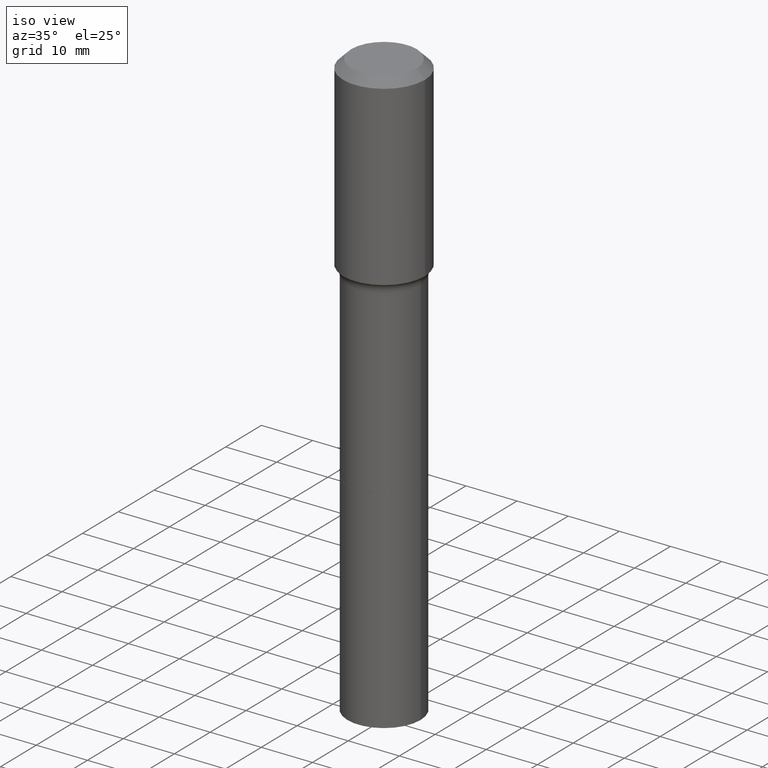
[diagram: clean part render]
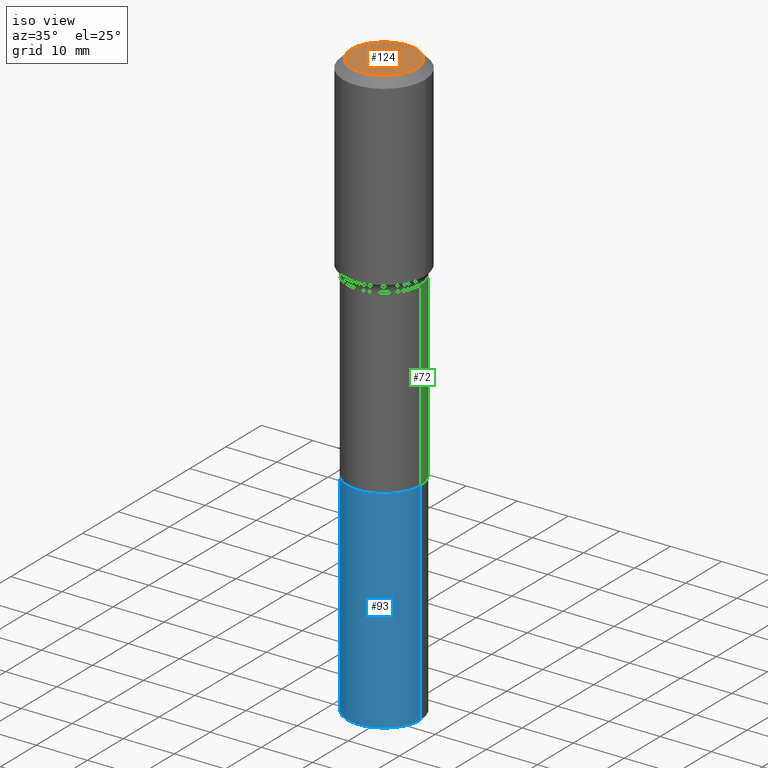
[diagram: same view with three faces highlighted in distinct colors, each labeled with its STEP entity id]
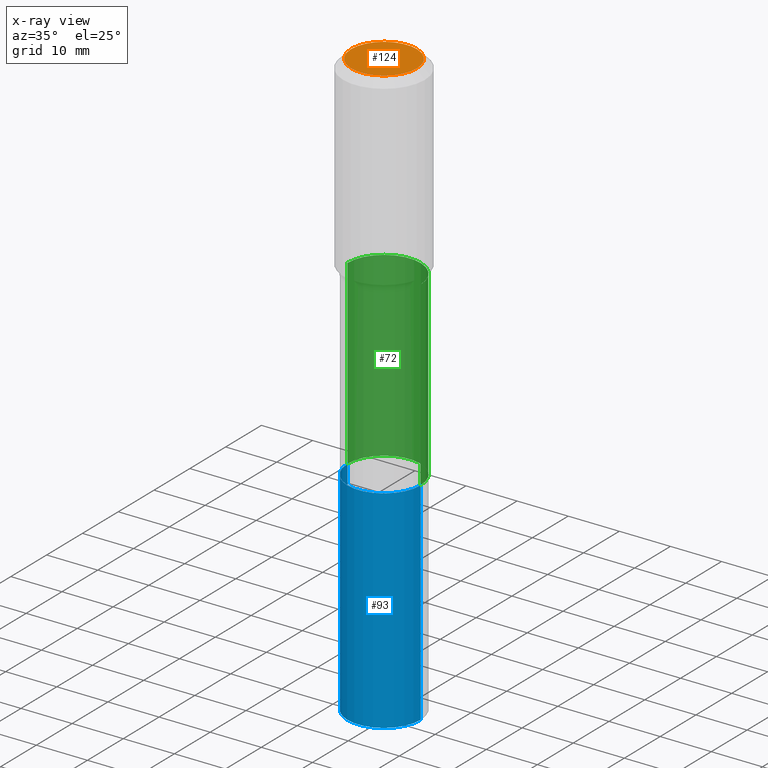
[diagram: x-ray of the same camera — body ghosted, the three highlighted faces saturated]
A machine part, iso view with three faces highlighted in distinct colors.
The next image is the same camera in x-ray (body ghosted, the three faces saturated) — at least one of them is partly hidden behind the body in this view.
Their STEP definitions:

[orange] entity #124 — the highlighted planar face has unit normal (0, -0, -1).
#10 = PLANE ( 'NONE',  #293 ) ;
#18 = DIRECTION ( 'NONE',  ( -1.000000000000000000, 6.982962677686265922E-15, -4.876176775795935793E-29 ) ) ;
#59 = DIRECTION ( 'NONE',  ( 1.000000000000000000, -6.982962677686266711E-15, 4.876115136096691995E-29 ) ) ;
#94 = CARTESIAN_POINT ( 'NONE',  ( -9.427742298522569579E-47, 1.346031739168368629E-32, 3.855188123715871501E-18 ) ) ;
#109 = EDGE_LOOP ( 'NONE', ( #151, #153 ) ) ;
#119 = EDGE_CURVE ( 'NONE', #347, #120, #303, .T. ) ;
#120 = VERTEX_POINT ( 'NONE', #490 ) ;
#124 = ADVANCED_FACE ( 'NONE', ( #255 ), #10, .F. ) ;
#132 = DIRECTION ( 'NONE',  ( 2.438088387897960049E-29, -3.491481338843145188E-15, -1.000000000000000000 ) ) ;
#151 = ORIENTED_EDGE ( 'NONE', *, *, #194, .T. ) ;
#153 = ORIENTED_EDGE ( 'NONE', *, *, #119, .T. ) ;
#194 = EDGE_CURVE ( 'NONE', #120, #347, #313, .T. ) ;
#249 = DIRECTION ( 'NONE',  ( 1.000000000000000000, -6.982962677686266711E-15, 4.876115136096691995E-29 ) ) ;
#255 = FACE_OUTER_BOUND ( 'NONE', #109, .T. ) ;
#291 = CARTESIAN_POINT ( 'NONE',  ( 0.2519600000000000173, -2.054606664725195453E-15, 3.855188123729206640E-18 ) ) ;
#293 = AXIS2_PLACEMENT_3D ( 'NONE', #297, #132, #18 ) ;
#297 = CARTESIAN_POINT ( 'NONE',  ( -4.713871149261284790E-47, 6.730158695841843144E-33, 1.927594061857935750E-18 ) ) ;
#303 = CIRCLE ( 'NONE', #396, 0.2519600000000000173 ) ;
#313 = CIRCLE ( 'NONE', #445, 0.2519600000000000173 ) ;
#347 = VERTEX_POINT ( 'NONE', #291 ) ;
#369 = DIRECTION ( 'NONE',  ( -2.445468806185136597E-29, 3.491481338843145583E-15, 1.000000000000000000 ) ) ;
#396 = AXIS2_PLACEMENT_3D ( 'NONE', #493, #369, #249 ) ;
#412 = DIRECTION ( 'NONE',  ( -2.445468806185136597E-29, 3.491481338843145583E-15, 1.000000000000000000 ) ) ;
#445 = AXIS2_PLACEMENT_3D ( 'NONE', #94, #412, #59 ) ;
#490 = CARTESIAN_POINT ( 'NONE',  ( -0.2519600000000000173, 1.869391481036695680E-15, 3.855188123703182704E-18 ) ) ;
#493 = CARTESIAN_POINT ( 'NONE',  ( -9.427742298522569579E-47, 1.346031739168368629E-32, 3.855188123715871501E-18 ) ) ;

[blue] entity #93 — the highlighted cylindrical surface (partial cylindrical patch) has radius 7.1437 mm, axis along (-0, 0, 1).
#39 = EDGE_LOOP ( 'NONE', ( #384, #148, #507, #446 ) ) ;
#40 = VERTEX_POINT ( 'NONE', #227 ) ;
#52 = DIRECTION ( 'NONE',  ( 1.000000000000000000, -6.982962677686269866E-15, 0.000000000000000000 ) ) ;
#55 = CARTESIAN_POINT ( 'NONE',  ( 7.078654006383494547E-29, -1.010644188341536605E-14, -2.894599999999999174 ) ) ;
#63 = CARTESIAN_POINT ( 'NONE',  ( 7.078654006383494547E-29, -1.010644188341536605E-14, -2.894599999999999174 ) ) ;
#67 = DIRECTION ( 'NONE',  ( 1.000000000000000000, -6.982962677686269866E-15, 0.000000000000000000 ) ) ;
#88 = CIRCLE ( 'NONE', #366, 0.2812500000000000000 ) ;
#92 = FACE_OUTER_BOUND ( 'NONE', #39, .T. ) ;
#93 = ADVANCED_FACE ( 'NONE', ( #92 ), #409, .T. ) ;
#99 = EDGE_CURVE ( 'NONE', #376, #40, #456, .T. ) ;
#116 = VERTEX_POINT ( 'NONE', #333 ) ;
#127 = CARTESIAN_POINT ( 'NONE',  ( -0.2812500000000000000, -8.108040439090084273E-15, -2.894599999999999174 ) ) ;
#129 = EDGE_CURVE ( 'NONE', #116, #376, #88, .T. ) ;
#134 = DIRECTION ( 'NONE',  ( 1.000000000000000000, -6.982962677686269866E-15, 0.000000000000000000 ) ) ;
#139 = CARTESIAN_POINT ( 'NONE',  ( 1.107210456688382298E-28, -1.580803090974622389E-14, -4.527599999999999625 ) ) ;
#148 = ORIENTED_EDGE ( 'NONE', *, *, #129, .T. ) ;
#154 = EDGE_CURVE ( 'NONE', #116, #183, #486, .T. ) ;
#172 = DIRECTION ( 'NONE',  ( -2.445468806185136597E-29, 3.491481338843145583E-15, 1.000000000000000000 ) ) ;
#183 = VERTEX_POINT ( 'NONE', #406 ) ;
#202 = CIRCLE ( 'NONE', #334, 0.2812500000000000000 ) ;
#218 = CARTESIAN_POINT ( 'NONE',  ( 0.2812500000000000000, -1.777198916284548562E-14, -4.527599999999999625 ) ) ;
#227 = CARTESIAN_POINT ( 'NONE',  ( 0.2812500000000000000, -1.207040013651462935E-14, -2.894599999999999174 ) ) ;
#228 = VECTOR ( 'NONE', #374, 39.37007874015748143 ) ;
#246 = EDGE_CURVE ( 'NONE', #183, #40, #202, .T. ) ;
#283 = VECTOR ( 'NONE', #453, 39.37007874015748143 ) ;
#333 = CARTESIAN_POINT ( 'NONE',  ( -0.2812500000000000000, -1.095883495225551399E-14, -4.527599999999999625 ) ) ;
#334 = AXIS2_PLACEMENT_3D ( 'NONE', #63, #499, #67 ) ;
#365 = DIRECTION ( 'NONE',  ( -2.445468806185136597E-29, 3.491481338843145583E-15, 1.000000000000000000 ) ) ;
#366 = AXIS2_PLACEMENT_3D ( 'NONE', #139, #365, #134 ) ;
#374 = DIRECTION ( 'NONE',  ( -2.445468806185136877E-29, 3.491481338843145188E-15, 1.000000000000000000 ) ) ;
#376 = VERTEX_POINT ( 'NONE', #218 ) ;
#384 = ORIENTED_EDGE ( 'NONE', *, *, #154, .F. ) ;
#406 = CARTESIAN_POINT ( 'NONE',  ( -0.2812500000000000000, -1.095883495225551399E-14, -2.894599999999999174 ) ) ;
#409 = CYLINDRICAL_SURFACE ( 'NONE', #410, 0.2812500000000000000 ) ;
#410 = AXIS2_PLACEMENT_3D ( 'NONE', #55, #172, #52 ) ;
#446 = ORIENTED_EDGE ( 'NONE', *, *, #246, .F. ) ;
#453 = DIRECTION ( 'NONE',  ( -2.445468806185136877E-29, 3.491481338843145188E-15, 1.000000000000000000 ) ) ;
#456 = LINE ( 'NONE', #497, #283 ) ;
#486 = LINE ( 'NONE', #127, #228 ) ;
#497 = CARTESIAN_POINT ( 'NONE',  ( 0.2812500000000000000, -1.207040013651462935E-14, -2.894599999999999174 ) ) ;
#499 = DIRECTION ( 'NONE',  ( -2.445468806185136597E-29, 3.491481338843145583E-15, 1.000000000000000000 ) ) ;
#507 = ORIENTED_EDGE ( 'NONE', *, *, #99, .T. ) ;

[green] entity #72 — the highlighted cylindrical surface (partial cylindrical patch) has radius 7.1437 mm, axis along (-0, 0, 1).
#16 = LINE ( 'NONE', #488, #343 ) ;
#57 = AXIS2_PLACEMENT_3D ( 'NONE', #458, #176, #288 ) ;
#60 = CARTESIAN_POINT ( 'NONE',  ( -0.2812499999999998890, -5.666622112904015686E-15, -1.496599999999999486 ) ) ;
#72 = ADVANCED_FACE ( 'NONE', ( #250 ), #208, .T. ) ;
#74 = EDGE_LOOP ( 'NONE', ( #388, #391, #278, #418 ) ) ;
#75 = CIRCLE ( 'NONE', #133, 0.2812499999999998890 ) ;
#82 = EDGE_CURVE ( 'NONE', #429, #372, #16, .T. ) ;
#105 = DIRECTION ( 'NONE',  ( 1.000000000000000000, -6.982962677686265133E-15, 0.000000000000000000 ) ) ;
#114 = AXIS2_PLACEMENT_3D ( 'NONE', #178, #300, #144 ) ;
#133 = AXIS2_PLACEMENT_3D ( 'NONE', #216, #371, #105 ) ;
#141 = LINE ( 'NONE', #425, #155 ) ;
#144 = DIRECTION ( 'NONE',  ( 1.000000000000000000, -6.982962677686268288E-15, 0.000000000000000000 ) ) ;
#155 = VECTOR ( 'NONE', #380, 39.37007874015748143 ) ;
#176 = DIRECTION ( 'NONE',  ( -2.445468806185136597E-29, 3.491481338843145583E-15, 1.000000000000000000 ) ) ;
#178 = CARTESIAN_POINT ( 'NONE',  ( 7.077431271980401746E-29, -1.010469614274594375E-14, -2.894099999999999007 ) ) ;
#196 = VERTEX_POINT ( 'NONE', #212 ) ;
#205 = EDGE_CURVE ( 'NONE', #196, #372, #75, .T. ) ;
#208 = CYLINDRICAL_SURFACE ( 'NONE', #57, 0.2812499999999999445 ) ;
#212 = CARTESIAN_POINT ( 'NONE',  ( 0.2812499999999998890, -7.189309224811911309E-15, -1.496599999999999486 ) ) ;
#216 = CARTESIAN_POINT ( 'NONE',  ( 3.659888615336674630E-29, -5.225350971712649586E-15, -1.496599999999999486 ) ) ;
#236 = VERTEX_POINT ( 'NONE', #265 ) ;
#245 = EDGE_CURVE ( 'NONE', #236, #429, #431, .T. ) ;
#250 = FACE_OUTER_BOUND ( 'NONE', #74, .T. ) ;
#261 = EDGE_CURVE ( 'NONE', #236, #196, #141, .T. ) ;
#265 = CARTESIAN_POINT ( 'NONE',  ( 0.2812500000000000555, -1.206865439584520705E-14, -2.894099999999999007 ) ) ;
#278 = ORIENTED_EDGE ( 'NONE', *, *, #205, .F. ) ;
#288 = DIRECTION ( 'NONE',  ( 1.000000000000000000, -6.982962677686268288E-15, 4.876176775795935793E-29 ) ) ;
#299 = CARTESIAN_POINT ( 'NONE',  ( -0.2812500000000000555, -5.666622112904014897E-15, -2.894099999999999007 ) ) ;
#300 = DIRECTION ( 'NONE',  ( -2.445468806185136597E-29, 3.491481338843145583E-15, 1.000000000000000000 ) ) ;
#336 = DIRECTION ( 'NONE',  ( -2.445468806185136877E-29, 3.491481338843145188E-15, 1.000000000000000000 ) ) ;
#343 = VECTOR ( 'NONE', #336, 39.37007874015748143 ) ;
#371 = DIRECTION ( 'NONE',  ( -2.445468806185136597E-29, 3.491481338843145583E-15, 1.000000000000000000 ) ) ;
#372 = VERTEX_POINT ( 'NONE', #60 ) ;
#380 = DIRECTION ( 'NONE',  ( -2.445468806185136877E-29, 3.491481338843145188E-15, 1.000000000000000000 ) ) ;
#388 = ORIENTED_EDGE ( 'NONE', *, *, #245, .T. ) ;
#391 = ORIENTED_EDGE ( 'NONE', *, *, #82, .T. ) ;
#418 = ORIENTED_EDGE ( 'NONE', *, *, #261, .F. ) ;
#425 = CARTESIAN_POINT ( 'NONE',  ( 0.2812499999999999445, -1.963958253099262512E-15, 1.371424718192606732E-29 ) ) ;
#429 = VERTEX_POINT ( 'NONE', #299 ) ;
#431 = CIRCLE ( 'NONE', #114, 0.2812500000000000555 ) ;
#458 = CARTESIAN_POINT ( 'NONE',  ( 0.000000000000000000, 0.000000000000000000, 0.000000000000000000 ) ) ;
#488 = CARTESIAN_POINT ( 'NONE',  ( -0.2812499999999999445, 1.998401444325281378E-15, -1.383450494134191988E-29 ) ) ;